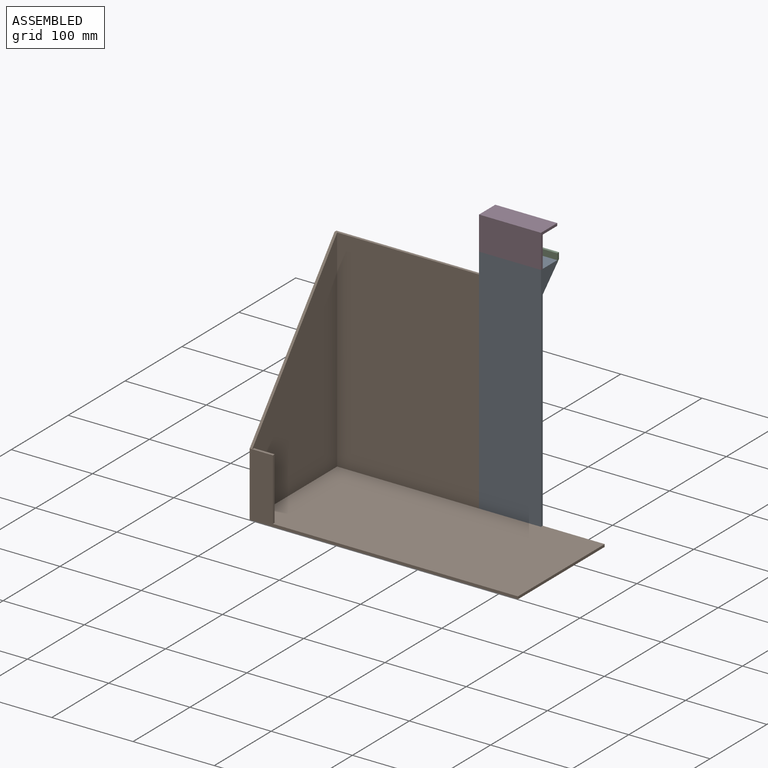
[diagram: assembled view]
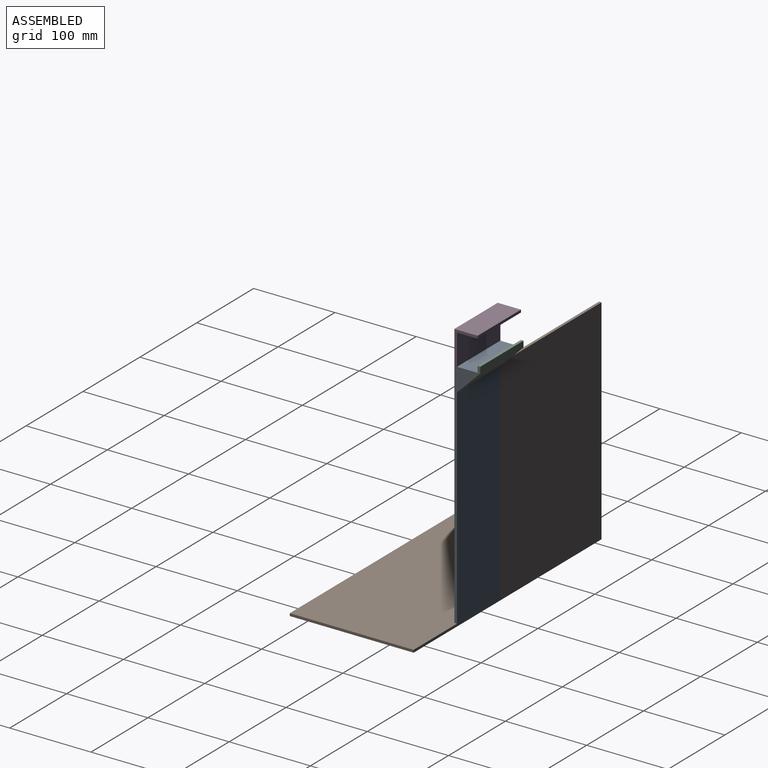
[diagram: assembled view, second angle]
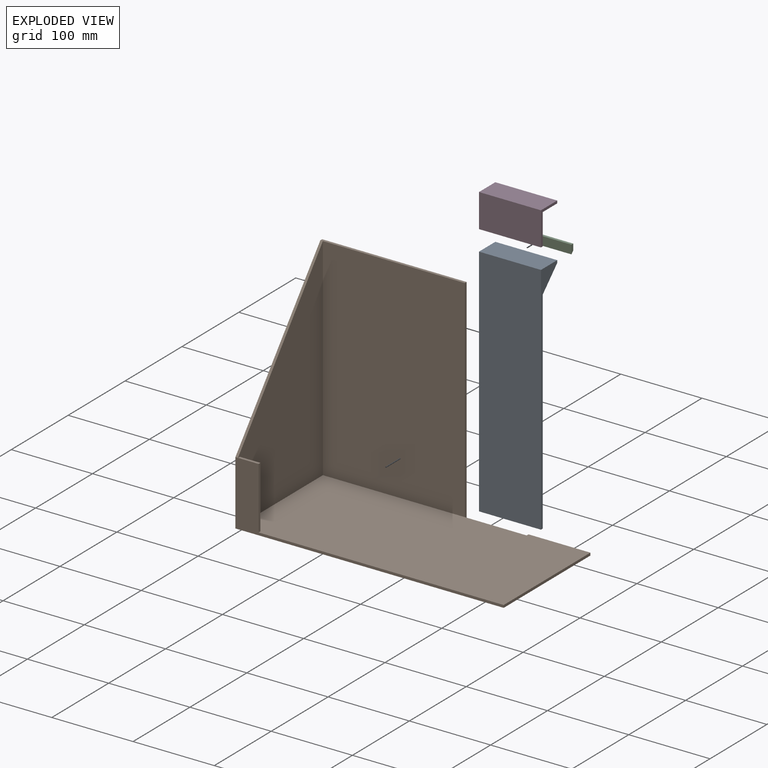
[diagram: exploded view]
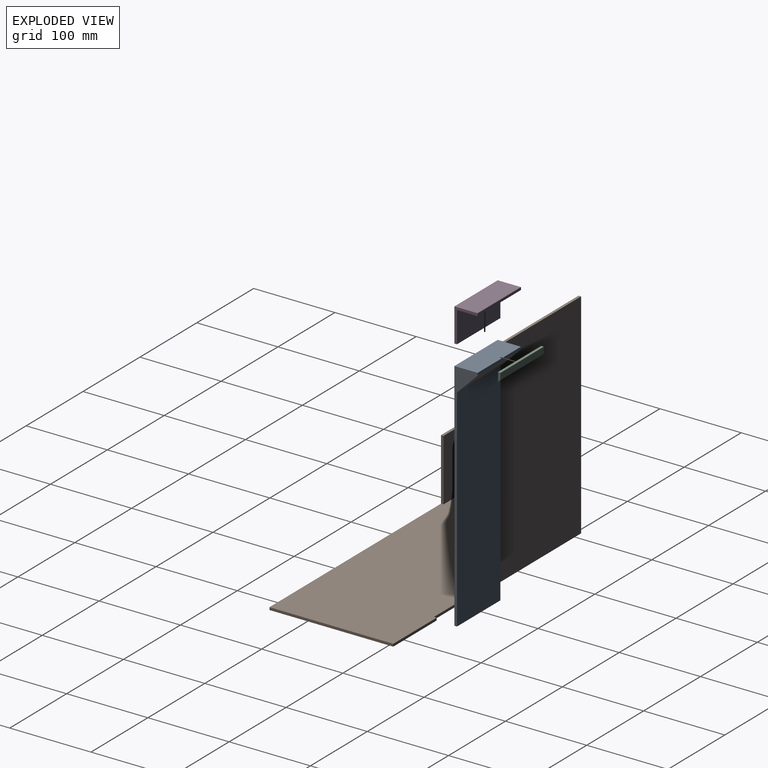
[diagram: exploded view, second angle]
ASSEMBLY  parts=4 mates=3
PART A: 8 faces, bbox 76.2x288.9x28.6 mm
  f0: plane 288.93x28.58mm, normal (1,0,0), area 1320.6mm2, adj f1,f3,f4,f5,f6,f7
  f1: plane 76.2x28.58mm, normal (0,1,0), area 2177.4mm2, adj f0,f2,f5,f6
  f2: plane 288.93x28.58mm, normal (-1,0,0), area 1320.6mm2, adj f1,f3,f4,f5,f6,f7
  f3: plane 76.2x3.18mm, normal (0,-1,0), area 241.9mm2, adj f0,f2,f4,f5
  f4: plane 260.35x76.2mm, normal (0,0,1), area 19838.7mm2, adj f0,f2,f3,f7
  f5: plane 288.93x76.2mm, normal (0,0,-1), area 22016.1mm2, adj f0,f1,f2,f3
  f6: plane 76.2x3.18mm, normal (0,0,1), area 241.9mm2, adj f0,f1,f2,f7
  f7: plane 76.2x25.4mm, normal (0,-0.71,0.71), area 2737.2mm2, adj f0,f2,f4,f6
PART B: 17 faces, bbox 330.2x152.4x263.5 mm
  f0: plane 76.2x3.18mm, normal (0,1,0), area 241.9mm2, adj f5,f8,f9,f12
  f1: plane 330.2x79.38mm, normal (0,-1,0), area 3225.8mm2, adj f2,f4,f5,f6,f9,f14,f16
  f2: plane 76.2x3.18mm, normal (1,0,0), area 241.9mm2, adj f1,f3,f4,f9
  f3: plane 76.2x25.4mm, normal (0,1,0), area 1935.5mm2, adj f2,f4,f9,f10
  f4: plane 25.4x3.18mm, normal (0,0,1), area 80.6mm2, adj f1,f2,f3,f10
  f5: plane 330.2x152.4mm, normal (0,0,-1), area 50080.5mm2, adj f0,f1,f6,f7,f8,f12,f13,f14
  f6: plane 152.4x3.18mm, normal (1,0,0), area 483.9mm2, adj f1,f5,f7,f9
  f7: plane 76.2x3.18mm, normal (0,1,0), area 241.9mm2, adj f5,f6,f8,f9
  f8: plane 3.18x3.18mm, normal (-1,0,0), area 10.1mm2, adj f0,f5,f7,f9
  f9: plane 327.03x152.4mm, normal (0,0,1), area 48961.6mm2, adj f0,f1,f2,f3,f6,f7,f8,f10
  f10: plane 260.35x149.23mm, normal (1,0,0), area 24868.9mm2, adj f3,f4,f9,f11,f16
  f11: plane 260.35x174.63mm, normal (0,-1,0), area 45463.6mm2, adj f9,f10,f12,f15
  f12: plane 263.53x3.18mm, normal (1,0,0), area 836.7mm2, adj f0,f5,f11,f13,f15
  f13: plane 263.53x177.8mm, normal (0,1,0), area 46854.7mm2, adj f5,f12,f14,f15
  f14: plane 263.53x152.4mm, normal (-1,0,0), area 26421.3mm2, adj f1,f5,f13,f15,f16
  f15: plane 177.8x3.18mm, normal (0,0,1), area 564.5mm2, adj f11,f12,f13,f14,f16
  f16: plane 184.15x149.23mm, normal (0,-0.78,0.63), area 752.5mm2, adj f1,f10,f14,f15
PART C: 6 faces, bbox 10.8x76.2x3.2 mm
  f0: plane 76.2x3.18mm, normal (1,0,0), area 241.9mm2, adj f1,f2,f3,f4
  f1: plane 10.8x3.18mm, normal (0,1,0), area 29.2mm2, adj f0,f3,f4,f5
  f2: plane 10.8x3.18mm, normal (0,-1,0), area 29.2mm2, adj f0,f3,f4,f5
  f3: plane 76.2x7.62mm, normal (0,0,1), area 580.6mm2, adj f0,f1,f2,f5
  f4: plane 76.2x10.8mm, normal (0,0,-1), area 822.6mm2, adj f0,f1,f2,f5
  f5: plane 76.2x3.18mm, normal (-0.71,0,0.71), area 342.1mm2, adj f1,f2,f3,f4
PART D: 8 faces, bbox 76.2x41.3x28.6 mm
  f0: plane 76.2x38.1mm, normal (0,0,1), area 2903.2mm2, adj f2,f3,f4,f6
  f1: plane 76.2x28.58mm, normal (0,1,0), area 2177.4mm2, adj f2,f4,f5,f7
  f2: plane 41.28x28.58mm, normal (-1,0,0), area 211.7mm2, adj f0,f1,f3,f5,f6,f7
  f3: plane 76.2x3.18mm, normal (0,-1,0), area 241.9mm2, adj f0,f2,f4,f5
  f4: plane 41.28x28.58mm, normal (1,0,0), area 211.7mm2, adj f0,f1,f3,f5,f6,f7
  f5: plane 76.2x41.28mm, normal (0,0,-1), area 3145.2mm2, adj f1,f2,f3,f4
  f6: plane 76.2x25.4mm, normal (0,-1,0), area 1935.5mm2, adj f0,f2,f4,f7
  f7: plane 76.2x3.18mm, normal (0,0,1), area 241.9mm2, adj f1,f2,f4,f6
PLACE A rot(axis=(0,-0.71,-0.71),180deg) t=(418.17,236.6,-129.75)mm
PLACE B t=(367.37,163.58,-274.21)mm
PLACE C rot(axis=(-0.58,-0.58,-0.58),120deg) t=(418.17,265.18,16.94)mm
PLACE D rot(axis=(0,-0.71,-0.71),180deg) t=(419.19,236.6,42.84)mm
MATE fastened A.f5 <-> B.f0  axis (0,1,0) through (380.07,236.6,-274.21)mm
MATE fastened A.f6 <-> C.f4  axis (0,1,0) through (380.07,265.18,11.54)mm
MATE fastened D.f3 <-> A.f1  axis (0,0,-1) through (456.27,236.6,14.72)mm
